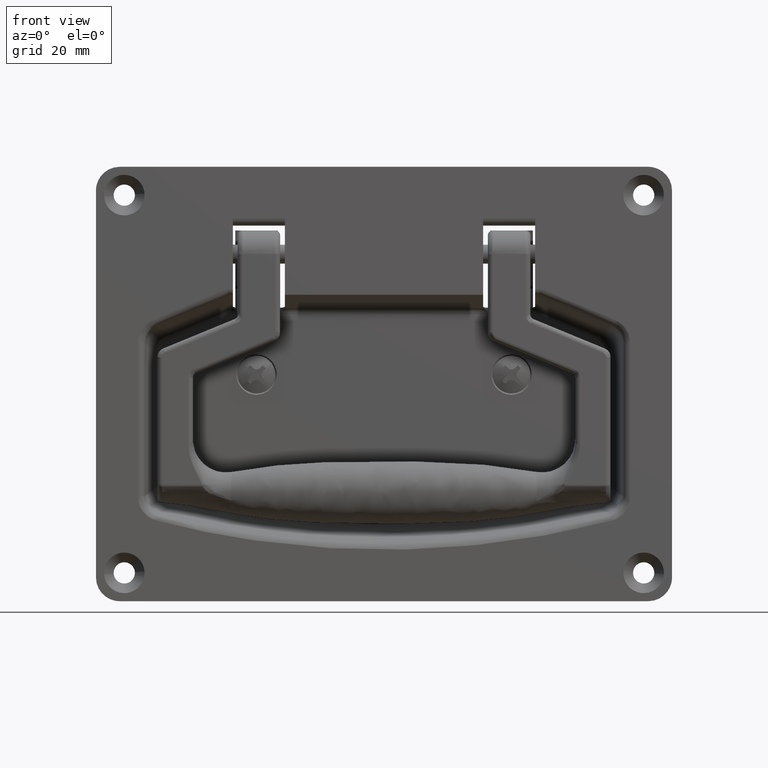
[diagram: clean part render]
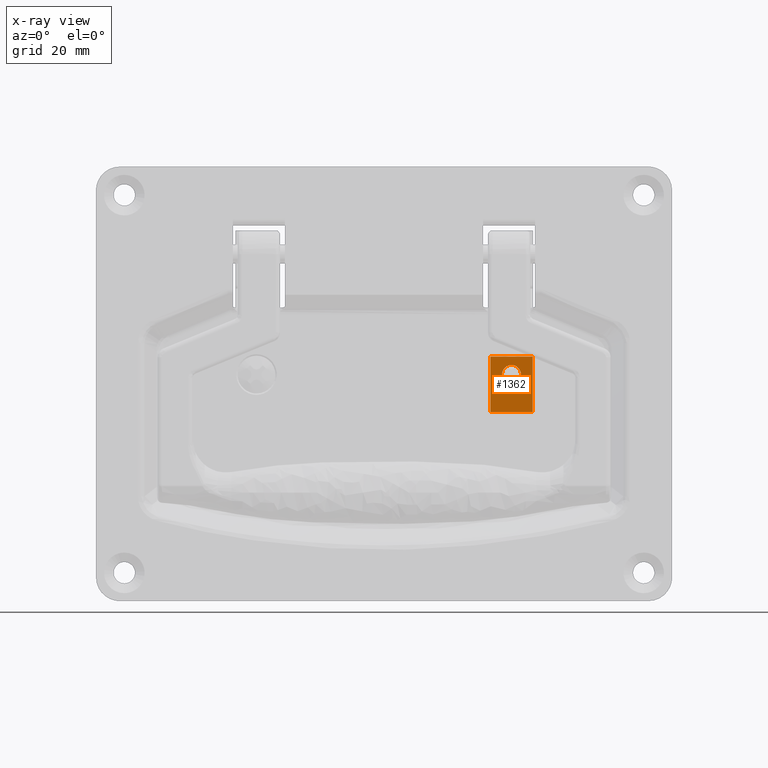
[diagram: x-ray — body ghosted, one internal face saturated and labeled with its STEP entity id]
A machine part, front view, then the same camera in x-ray: the body is ghosted and one INTERNAL B-rep face — a face not visible from any outside direction — is saturated and labeled: STEP entity #1362.
In plain terms, the highlighted face is a freeform B-spline surface patch.
Its self-contained STEP definition (entity closure, byte-faithful):
#777=CARTESIAN_POINT('',(11.800000000000001,28.484532339963909,-25.251763294880359));
#778=VERTEX_POINT('',#777);
#779=CARTESIAN_POINT('',(11.800000000000001,26.500000000000000,-23.500019999999999));
#780=VERTEX_POINT('',#779);
#781=CARTESIAN_POINT('',(11.800000000000002,28.484532339963923,-25.251763294880362));
#782=CARTESIAN_POINT('',(11.799999999999997,28.265395943462934,-23.500019999999999));
#783=CARTESIAN_POINT('',(11.800000000000001,26.500000000000000,-23.500019999999999));
#791=(BOUNDED_CURVE()B_SPLINE_CURVE(2,(#781,#782,#783),.UNSPECIFIED.,.F.,.U.)B_SPLINE_CURVE_WITH_KNOTS((3,3),(0.771474048106106,1.0),.UNSPECIFIED.)CURVE()GEOMETRIC_REPRESENTATION_ITEM()RATIONAL_B_SPLINE_CURVE((0.954005199079090,0.732265193469557,1.0))REPRESENTATION_ITEM(''));
#792=EDGE_CURVE('',#778,#780,#791,.T.);
#833=CARTESIAN_POINT('',(11.800000000000001,24.500076153879540,-25.517473071900209));
#834=VERTEX_POINT('',#833);
#840=CARTESIAN_POINT('',(11.800000000000001,26.500000000000000,-23.500019999999999));
#841=CARTESIAN_POINT('',(11.799999999999999,24.500000000000004,-23.500019999999996));
#842=CARTESIAN_POINT('',(11.800000000000001,24.500000000000000,-25.500019999999999));
#843=CARTESIAN_POINT('',(11.799999999999997,24.500000000000004,-25.508746702544911));
#844=CARTESIAN_POINT('',(11.800000000000002,24.500076153879544,-25.517473071900206));
#852=(BOUNDED_CURVE()B_SPLINE_CURVE(2,(#840,#841,#842,#843,#844),.UNSPECIFIED.,.F.,.U.)B_SPLINE_CURVE_WITH_KNOTS((3,2,3),(0.0,0.250000000000000,0.251539894494130),.UNSPECIFIED.)CURVE()GEOMETRIC_REPRESENTATION_ITEM()RATIONAL_B_SPLINE_CURVE((1.0,0.707106781186548,1.0,0.998195901379925,0.996414027732105))REPRESENTATION_ITEM(''));
#853=EDGE_CURVE('',#780,#834,#852,.T.);
#880=CARTESIAN_POINT('',(11.800000000000001,26.500000000000000,-27.500019999999999));
#881=VERTEX_POINT('',#880);
#882=CARTESIAN_POINT('',(11.800000000000001,26.500000000000000,-27.500019999999999));
#883=CARTESIAN_POINT('',(11.799999999999999,28.499999999999993,-27.500019999999999));
#884=CARTESIAN_POINT('',(11.800000000000001,28.500000000000000,-25.500019999999999));
#885=CARTESIAN_POINT('',(11.800000000000002,28.500000000000004,-25.375409435767388));
#886=CARTESIAN_POINT('',(11.800000000000002,28.484532339963923,-25.251763294880362));
#894=(BOUNDED_CURVE()B_SPLINE_CURVE(2,(#882,#883,#884,#885,#886),.UNSPECIFIED.,.F.,.U.)B_SPLINE_CURVE_WITH_KNOTS((3,2,3),(0.500000000000000,0.750000000000000,0.771474048106106),.UNSPECIFIED.)CURVE()GEOMETRIC_REPRESENTATION_ITEM()RATIONAL_B_SPLINE_CURVE((1.0,0.707106781186548,1.0,0.974841587716990,0.954005199079090))REPRESENTATION_ITEM(''));
#895=EDGE_CURVE('',#881,#778,#894,.T.);
#897=CARTESIAN_POINT('',(11.800000000000001,24.500076153879540,-25.517473071900202));
#898=CARTESIAN_POINT('',(11.799999999999999,24.517377580601391,-27.500019999999992));
#899=CARTESIAN_POINT('',(11.800000000000001,26.500000000000000,-27.500019999999999));
#907=(BOUNDED_CURVE()B_SPLINE_CURVE(2,(#897,#898,#899),.UNSPECIFIED.,.F.,.U.)B_SPLINE_CURVE_WITH_KNOTS((3,3),(0.251539894494130,0.500000000000000),.UNSPECIFIED.)CURVE()GEOMETRIC_REPRESENTATION_ITEM()RATIONAL_B_SPLINE_CURVE((0.996414027732105,0.708910879806623,1.0))REPRESENTATION_ITEM(''));
#908=EDGE_CURVE('',#834,#881,#907,.T.);
#1029=CARTESIAN_POINT('',(11.800000000000001,31.0,-33.500019999999999));
#1030=VERTEX_POINT('',#1029);
#1036=CARTESIAN_POINT('',(11.800000000000001,31.0,-21.700000000085598));
#1037=VERTEX_POINT('',#1036);
#1038=CARTESIAN_POINT('',(11.800000000000001,31.0,-33.500019999999999));
#1039=CARTESIAN_POINT('',(11.800000000000001,31.0,-21.700000000085598));
#1040=QUASI_UNIFORM_CURVE('',1,(#1038,#1039),.UNSPECIFIED.,.F.,.U.);
#1041=EDGE_CURVE('',#1030,#1037,#1040,.T.);
#1083=CARTESIAN_POINT('',(11.800000000000001,22.0,-21.700000000085598));
#1084=VERTEX_POINT('',#1083);
#1098=CARTESIAN_POINT('',(11.800000000000001,22.0,-33.500019999999999));
#1099=VERTEX_POINT('',#1098);
#1100=CARTESIAN_POINT('',(11.800000000000001,22.0,-33.500019999999999));
#1101=CARTESIAN_POINT('',(11.800000000000001,22.0,-21.700000000085598));
#1102=QUASI_UNIFORM_CURVE('',1,(#1100,#1101),.UNSPECIFIED.,.F.,.U.);
#1103=EDGE_CURVE('',#1099,#1084,#1102,.T.);
#1188=CARTESIAN_POINT('',(11.800000000000001,22.0,-21.700000000085598));
#1189=CARTESIAN_POINT('',(11.800000000000001,31.0,-21.700000000085598));
#1190=QUASI_UNIFORM_CURVE('',1,(#1188,#1189),.UNSPECIFIED.,.F.,.U.);
#1191=EDGE_CURVE('',#1084,#1037,#1190,.T.);
#1214=CARTESIAN_POINT('',(11.800000000000001,22.0,-33.500019999999999));
#1215=CARTESIAN_POINT('',(11.800000000000001,31.0,-33.500019999999999));
#1216=QUASI_UNIFORM_CURVE('',1,(#1214,#1215),.UNSPECIFIED.,.F.,.U.);
#1217=EDGE_CURVE('',#1099,#1030,#1216,.T.);
#1345=CARTESIAN_POINT('',(11.800000000000001,21.550450017443751,-34.089430047805863));
#1346=CARTESIAN_POINT('',(11.800000000000001,21.550450017443751,-21.110589635778521));
#1347=CARTESIAN_POINT('',(11.800000000000001,31.449550223955072,-34.089430047805870));
#1348=CARTESIAN_POINT('',(11.800000000000001,31.449550223955072,-21.110589635778521));
#1349=B_SPLINE_SURFACE_WITH_KNOTS('',1,1,((#1345,#1347),(#1346,#1348)),.UNSPECIFIED.,.F.,.F.,.U.,(2,2),(2,2),(0.0,12.978840412027351),(0.0,9.899100206511324),.UNSPECIFIED.);
#1350=ORIENTED_EDGE('',*,*,#1041,.F.);
#1351=ORIENTED_EDGE('',*,*,#1217,.F.);
#1352=ORIENTED_EDGE('',*,*,#1103,.T.);
#1353=ORIENTED_EDGE('',*,*,#1191,.T.);
#1354=EDGE_LOOP('',(#1350,#1351,#1352,#1353));
#1355=FACE_OUTER_BOUND('',#1354,.T.);
#1356=ORIENTED_EDGE('',*,*,#853,.T.);
#1357=ORIENTED_EDGE('',*,*,#908,.T.);
#1358=ORIENTED_EDGE('',*,*,#895,.T.);
#1359=ORIENTED_EDGE('',*,*,#792,.T.);
#1360=EDGE_LOOP('',(#1356,#1357,#1358,#1359));
#1361=FACE_BOUND('',#1360,.T.);
#1362=ADVANCED_FACE('',(#1355,#1361),#1349,.T.);